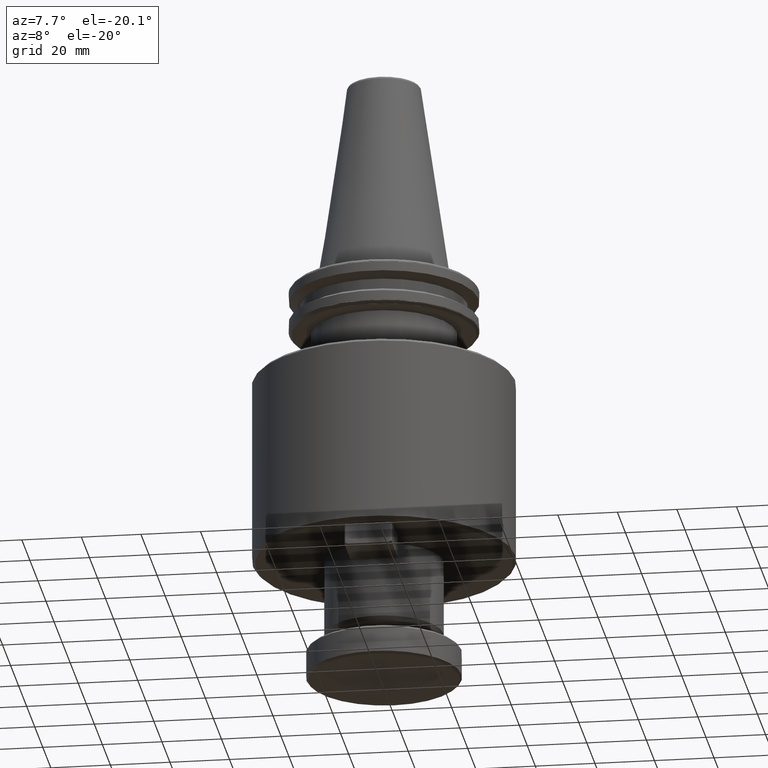
[diagram: clean part render]
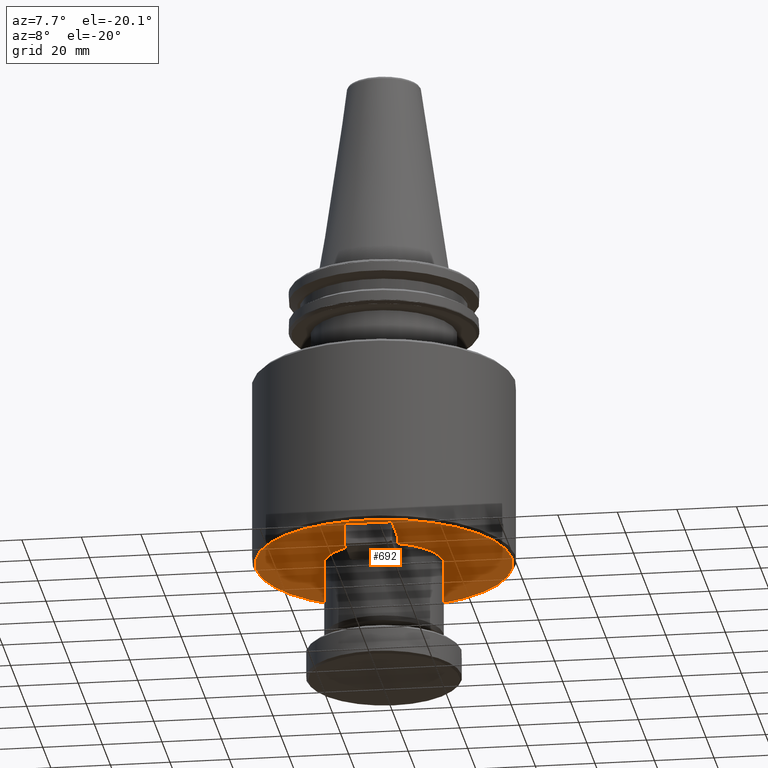
[diagram: same view with one face highlighted and labeled with its STEP entity id]
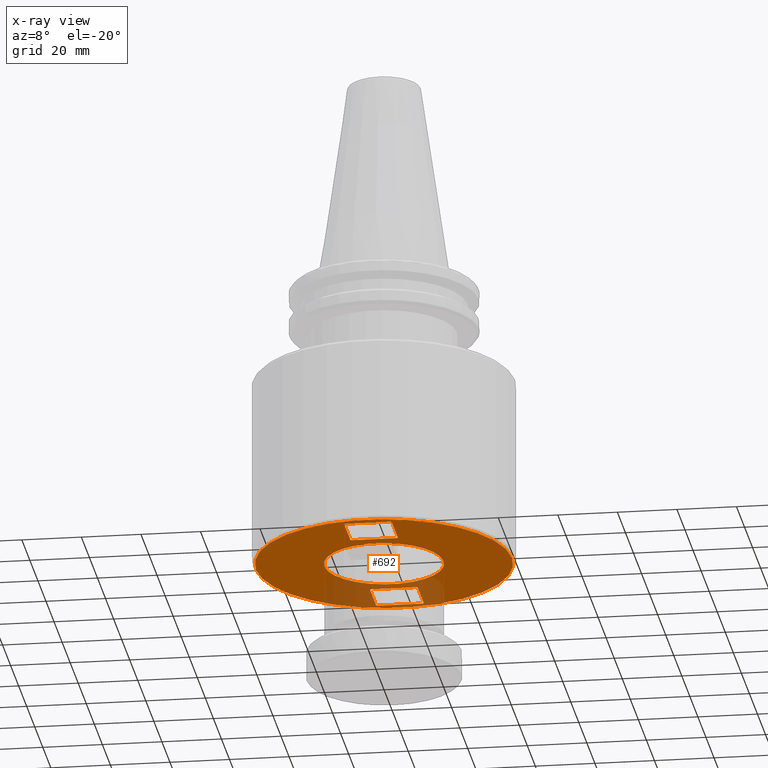
[diagram: x-ray of the same camera — body ghosted, the highlighted face saturated]
A machine part, auxiliary view. The second image highlights one B-rep face of the part: STEP entity #692.
The next image is the same camera in x-ray: the body ghosted, the highlighted face saturated — about 17% of this face is hidden behind the body in this view.
In plain terms, the highlighted planar face has unit normal (0, 0, 1).
Its self-contained STEP definition (entity closure, byte-faithful):
#16 = CARTESIAN_POINT ( 'NONE',  ( -8.000000000000028400, -39.60000000000004400, -100.0000000000000000 ) ) ;
#38 = CARTESIAN_POINT ( 'NONE',  ( 8.000000000000005300, -24.40000000000001300, -100.0000000000000000 ) ) ;
#44 = LINE ( 'NONE', #3498, #367 ) ;
#63 = CARTESIAN_POINT ( 'NONE',  ( -7.600000000000028100, 40.00000000000002800, -100.0000000000000000 ) ) ;
#74 = EDGE_CURVE ( 'NONE', #2169, #2018, #3977, .T. ) ;
#94 = VECTOR ( 'NONE', #189, 1000.000000000000000 ) ;
#136 = CARTESIAN_POINT ( 'NONE',  ( 43.00000000000000000, 0.0000000000000000000, -100.0000000000000000 ) ) ;
#140 = CARTESIAN_POINT ( 'NONE',  ( 0.0000000000000000000, 24.00000000000002800, -100.0000000000000000 ) ) ;
#149 = LINE ( 'NONE', #2171, #1174 ) ;
#177 = EDGE_LOOP ( 'NONE', ( #3212, #707 ) ) ;
#189 = DIRECTION ( 'NONE',  ( -1.000000000000000000, -0.0000000000000000000, 0.0000000000000000000 ) ) ;
#319 = AXIS2_PLACEMENT_3D ( 'NONE', #3866, #2589, #4181 ) ;
#329 = CARTESIAN_POINT ( 'NONE',  ( -43.00000000000000000, 5.327213576290986800E-015, -100.0000000000000000 ) ) ;
#367 = VECTOR ( 'NONE', #2789, 1000.000000000000000 ) ;
#370 = CARTESIAN_POINT ( 'NONE',  ( -8.000000000000007100, 24.40000000000001300, -100.0000000000000000 ) ) ;
#463 = EDGE_CURVE ( 'NONE', #2000, #3263, #44, .T. ) ;
#471 = LINE ( 'NONE', #3968, #522 ) ;
#481 = ORIENTED_EDGE ( 'NONE', *, *, #74, .F. ) ;
#494 = DIRECTION ( 'NONE',  ( 1.000000000000000000, 0.0000000000000000000, 0.0000000000000000000 ) ) ;
#503 = CARTESIAN_POINT ( 'NONE',  ( 7.600000000000048500, 24.00000000000002800, -100.0000000000000000 ) ) ;
#516 = DIRECTION ( 'NONE',  ( 0.0000000000000000000, -0.0000000000000000000, 1.000000000000000000 ) ) ;
#522 = VECTOR ( 'NONE', #3696, 1000.000000000000000 ) ;
#539 = CARTESIAN_POINT ( 'NONE',  ( 0.0000000000000000000, 0.0000000000000000000, -100.0000000000000000 ) ) ;
#544 = ORIENTED_EDGE ( 'NONE', *, *, #463, .F. ) ;
#609 = VERTEX_POINT ( 'NONE', #3839 ) ;
#692 = ADVANCED_FACE ( 'NONE', ( #1854, #1520, #1967, #1957 ), #4282, .F. ) ;
#707 = ORIENTED_EDGE ( 'NONE', *, *, #1762, .F. ) ;
#765 = VERTEX_POINT ( 'NONE', #4037 ) ;
#806 = CARTESIAN_POINT ( 'NONE',  ( 8.000000000000028400, 39.60000000000004400, -100.0000000000000000 ) ) ;
#836 = CARTESIAN_POINT ( 'NONE',  ( 7.600000000000048500, 24.00000000000002800, -100.0000000000000000 ) ) ;
#846 = DIRECTION ( 'NONE',  ( 1.000000000000000000, 0.0000000000000000000, 0.0000000000000000000 ) ) ;
#850 = DIRECTION ( 'NONE',  ( -0.0000000000000000000, -0.0000000000000000000, -1.000000000000000000 ) ) ;
#851 = CARTESIAN_POINT ( 'NONE',  ( 0.0000000000000000000, 0.0000000000000000000, -100.0000000000000000 ) ) ;
#865 = DIRECTION ( 'NONE',  ( 1.000000000000000000, 0.0000000000000000000, -0.0000000000000000000 ) ) ;
#877 = CARTESIAN_POINT ( 'NONE',  ( -7.600000000000048500, -24.00000000000002800, -100.0000000000000000 ) ) ;
#883 = VERTEX_POINT ( 'NONE', #3817 ) ;
#896 = DIRECTION ( 'NONE',  ( 0.7071067811865222600, 0.7071067811865727700, -0.0000000000000000000 ) ) ;
#942 = ORIENTED_EDGE ( 'NONE', *, *, #3050, .T. ) ;
#953 = CARTESIAN_POINT ( 'NONE',  ( 8.000000000000005300, 43.00000000000000000, -100.0000000000000000 ) ) ;
#968 = DIRECTION ( 'NONE',  ( 0.0000000000000000000, -1.000000000000000000, -0.0000000000000000000 ) ) ;
#1021 = VECTOR ( 'NONE', #2764, 1000.000000000000100 ) ;
#1033 = LINE ( 'NONE', #3188, #1473 ) ;
#1101 = CARTESIAN_POINT ( 'NONE',  ( 7.999999999999986700, -39.60000000000003700, -100.0000000000000000 ) ) ;
#1115 = AXIS2_PLACEMENT_3D ( 'NONE', #851, #850, #846 ) ;
#1174 = VECTOR ( 'NONE', #2177, 1000.000000000000000 ) ;
#1189 = VERTEX_POINT ( 'NONE', #2344 ) ;
#1193 = EDGE_CURVE ( 'NONE', #609, #1316, #3955, .T. ) ;
#1201 = ORIENTED_EDGE ( 'NONE', *, *, #2316, .F. ) ;
#1204 = ORIENTED_EDGE ( 'NONE', *, *, #2164, .F. ) ;
#1225 = DIRECTION ( 'NONE',  ( -0.7071067811865736600, 0.7071067811865214800, -0.0000000000000000000 ) ) ;
#1280 = LINE ( 'NONE', #38, #1021 ) ;
#1316 = VERTEX_POINT ( 'NONE', #2698 ) ;
#1324 = CARTESIAN_POINT ( 'NONE',  ( 0.0000000000000000000, -40.00000000000002800, -100.0000000000000000 ) ) ;
#1372 = CARTESIAN_POINT ( 'NONE',  ( -7.599999999999993400, 24.00000000000002800, -100.0000000000000000 ) ) ;
#1393 = EDGE_CURVE ( 'NONE', #2203, #1529, #471, .T. ) ;
#1431 = EDGE_CURVE ( 'NONE', #4171, #1529, #149, .T. ) ;
#1473 = VECTOR ( 'NONE', #865, 1000.000000000000000 ) ;
#1507 = DIRECTION ( 'NONE',  ( 0.0000000000000000000, -1.000000000000000000, -0.0000000000000000000 ) ) ;
#1509 = CIRCLE ( 'NONE', #3437, 43.00000000000000000 ) ;
#1520 = FACE_OUTER_BOUND ( 'NONE', #4034, .T. ) ;
#1529 = VERTEX_POINT ( 'NONE', #1666 ) ;
#1589 = ORIENTED_EDGE ( 'NONE', *, *, #1786, .T. ) ;
#1598 = DIRECTION ( 'NONE',  ( -0.7071067811865727700, 0.7071067811865222600, -0.0000000000000000000 ) ) ;
#1625 = VECTOR ( 'NONE', #968, 1000.000000000000000 ) ;
#1643 = VERTEX_POINT ( 'NONE', #1101 ) ;
#1666 = CARTESIAN_POINT ( 'NONE',  ( -8.000000000000008900, -24.40000000000002000, -100.0000000000000000 ) ) ;
#1691 = LINE ( 'NONE', #806, #3611 ) ;
#1720 = LINE ( 'NONE', #140, #94 ) ;
#1722 = EDGE_CURVE ( 'NONE', #1189, #1643, #3097, .T. ) ;
#1723 = VECTOR ( 'NONE', #1507, 1000.000000000000000 ) ;
#1762 = EDGE_CURVE ( 'NONE', #883, #3621, #2868, .T. ) ;
#1770 = LINE ( 'NONE', #3403, #1723 ) ;
#1781 = LINE ( 'NONE', #1324, #3609 ) ;
#1786 = EDGE_CURVE ( 'NONE', #1923, #3965, #2954, .T. ) ;
#1810 = ORIENTED_EDGE ( 'NONE', *, *, #2333, .F. ) ;
#1854 = FACE_BOUND ( 'NONE', #177, .T. ) ;
#1861 = DIRECTION ( 'NONE',  ( 0.7071067811865727700, -0.7071067811865222600, -0.0000000000000000000 ) ) ;
#1917 = ORIENTED_EDGE ( 'NONE', *, *, #4179, .F. ) ;
#1923 = VERTEX_POINT ( 'NONE', #503 ) ;
#1938 = CARTESIAN_POINT ( 'NONE',  ( -8.000000000000028400, -39.60000000000004400, -100.0000000000000000 ) ) ;
#1957 = FACE_BOUND ( 'NONE', #3828, .T. ) ;
#1960 = CARTESIAN_POINT ( 'NONE',  ( 7.600000000000027200, -40.00000000000002800, -100.0000000000000000 ) ) ;
#1967 = FACE_BOUND ( 'NONE', #3627, .T. ) ;
#2000 = VERTEX_POINT ( 'NONE', #370 ) ;
#2012 = ORIENTED_EDGE ( 'NONE', *, *, #2852, .F. ) ;
#2018 = VERTEX_POINT ( 'NONE', #329 ) ;
#2045 = VECTOR ( 'NONE', #896, 1000.000000000000000 ) ;
#2072 = ORIENTED_EDGE ( 'NONE', *, *, #1722, .F. ) ;
#2100 = VECTOR ( 'NONE', #2446, 1000.000000000000100 ) ;
#2164 = EDGE_CURVE ( 'NONE', #1923, #2819, #1720, .T. ) ;
#2169 = VERTEX_POINT ( 'NONE', #136 ) ;
#2171 = CARTESIAN_POINT ( 'NONE',  ( -7.600000000000048500, -24.00000000000002800, -100.0000000000000000 ) ) ;
#2177 = DIRECTION ( 'NONE',  ( -0.7071067811865222600, -0.7071067811865727700, -0.0000000000000000000 ) ) ;
#2203 = VERTEX_POINT ( 'NONE', #16 ) ;
#2215 = ORIENTED_EDGE ( 'NONE', *, *, #3309, .T. ) ;
#2284 = LINE ( 'NONE', #63, #2100 ) ;
#2301 = VERTEX_POINT ( 'NONE', #1960 ) ;
#2316 = EDGE_CURVE ( 'NONE', #765, #1189, #1280, .T. ) ;
#2317 = ORIENTED_EDGE ( 'NONE', *, *, #2640, .F. ) ;
#2318 = ORIENTED_EDGE ( 'NONE', *, *, #1393, .F. ) ;
#2331 = DIRECTION ( 'NONE',  ( 1.000000000000000000, 0.0000000000000000000, -0.0000000000000000000 ) ) ;
#2333 = EDGE_CURVE ( 'NONE', #2018, #2169, #1509, .T. ) ;
#2344 = CARTESIAN_POINT ( 'NONE',  ( 8.000000000000007100, -24.40000000000001300, -100.0000000000000000 ) ) ;
#2354 = CARTESIAN_POINT ( 'NONE',  ( 0.0000000000000000000, 40.00000000000002800, -100.0000000000000000 ) ) ;
#2361 = EDGE_CURVE ( 'NONE', #3916, #3965, #1770, .T. ) ;
#2446 = DIRECTION ( 'NONE',  ( -0.7071067811865214800, -0.7071067811865736600, -0.0000000000000000000 ) ) ;
#2459 = CARTESIAN_POINT ( 'NONE',  ( 20.00000000000000000, 0.0000000000000000000, -100.0000000000000000 ) ) ;
#2569 = ORIENTED_EDGE ( 'NONE', *, *, #2361, .F. ) ;
#2589 = DIRECTION ( 'NONE',  ( -0.0000000000000000000, -0.0000000000000000000, -1.000000000000000000 ) ) ;
#2637 = EDGE_CURVE ( 'NONE', #3621, #883, #2906, .T. ) ;
#2640 = EDGE_CURVE ( 'NONE', #2762, #2203, #3291, .T. ) ;
#2664 = CARTESIAN_POINT ( 'NONE',  ( 7.600000000000028100, -40.00000000000002800, -100.0000000000000000 ) ) ;
#2670 = CARTESIAN_POINT ( 'NONE',  ( -7.600000000000014700, -40.00000000000002800, -100.0000000000000000 ) ) ;
#2698 = CARTESIAN_POINT ( 'NONE',  ( 7.600000000000014700, 40.00000000000002800, -100.0000000000000000 ) ) ;
#2762 = VERTEX_POINT ( 'NONE', #2670 ) ;
#2764 = DIRECTION ( 'NONE',  ( 0.7071067811865736600, -0.7071067811865214800, -0.0000000000000000000 ) ) ;
#2789 = DIRECTION ( 'NONE',  ( -0.0000000000000000000, 1.000000000000000000, 0.0000000000000000000 ) ) ;
#2819 = VERTEX_POINT ( 'NONE', #1372 ) ;
#2852 = EDGE_CURVE ( 'NONE', #2301, #2762, #1781, .T. ) ;
#2858 = VECTOR ( 'NONE', #2331, 1000.000000000000000 ) ;
#2868 = CIRCLE ( 'NONE', #1115, 20.00000000000000000 ) ;
#2881 = DIRECTION ( 'NONE',  ( 1.000000000000000000, 0.0000000000000000000, 0.0000000000000000000 ) ) ;
#2906 = CIRCLE ( 'NONE', #319, 20.00000000000000000 ) ;
#2940 = AXIS2_PLACEMENT_3D ( 'NONE', #539, #516, #494 ) ;
#2954 = LINE ( 'NONE', #836, #2045 ) ;
#2960 = ORIENTED_EDGE ( 'NONE', *, *, #1193, .F. ) ;
#2979 = ORIENTED_EDGE ( 'NONE', *, *, #3806, .F. ) ;
#3050 = EDGE_CURVE ( 'NONE', #609, #3263, #2284, .T. ) ;
#3097 = LINE ( 'NONE', #953, #1625 ) ;
#3098 = DIRECTION ( 'NONE',  ( 1.000000000000000000, 0.0000000000000000000, -0.0000000000000000000 ) ) ;
#3101 = DIRECTION ( 'NONE',  ( 0.0000000000000000000, 0.0000000000000000000, 1.000000000000000000 ) ) ;
#3170 = EDGE_CURVE ( 'NONE', #1316, #3916, #1691, .T. ) ;
#3188 = CARTESIAN_POINT ( 'NONE',  ( 0.0000000000000000000, -24.00000000000002800, -100.0000000000000000 ) ) ;
#3208 = CARTESIAN_POINT ( 'NONE',  ( -8.000000000000005300, 24.40000000000001300, -100.0000000000000000 ) ) ;
#3212 = ORIENTED_EDGE ( 'NONE', *, *, #2637, .F. ) ;
#3239 = VECTOR ( 'NONE', #1598, 1000.000000000000000 ) ;
#3263 = VERTEX_POINT ( 'NONE', #3932 ) ;
#3291 = LINE ( 'NONE', #1938, #3239 ) ;
#3309 = EDGE_CURVE ( 'NONE', #2301, #1643, #3961, .T. ) ;
#3403 = CARTESIAN_POINT ( 'NONE',  ( 8.000000000000028400, 43.00000000000000000, -100.0000000000000000 ) ) ;
#3437 = AXIS2_PLACEMENT_3D ( 'NONE', #3531, #3476, #2881 ) ;
#3448 = VECTOR ( 'NONE', #1225, 1000.000000000000100 ) ;
#3476 = DIRECTION ( 'NONE',  ( 0.0000000000000000000, -0.0000000000000000000, 1.000000000000000000 ) ) ;
#3498 = CARTESIAN_POINT ( 'NONE',  ( -8.000000000000005300, 43.00000000000000000, -100.0000000000000000 ) ) ;
#3531 = CARTESIAN_POINT ( 'NONE',  ( 0.0000000000000000000, 0.0000000000000000000, -100.0000000000000000 ) ) ;
#3563 = CARTESIAN_POINT ( 'NONE',  ( 8.000000000000028400, 39.60000000000004400, -100.0000000000000000 ) ) ;
#3609 = VECTOR ( 'NONE', #3631, 1000.000000000000000 ) ;
#3611 = VECTOR ( 'NONE', #1861, 1000.000000000000000 ) ;
#3621 = VERTEX_POINT ( 'NONE', #2459 ) ;
#3627 = EDGE_LOOP ( 'NONE', ( #4228, #2960, #942, #544, #1917, #1204, #1589, #2569 ) ) ;
#3630 = ORIENTED_EDGE ( 'NONE', *, *, #1431, .T. ) ;
#3631 = DIRECTION ( 'NONE',  ( -1.000000000000000000, -0.0000000000000000000, 0.0000000000000000000 ) ) ;
#3646 = CARTESIAN_POINT ( 'NONE',  ( 8.000000000000010700, 24.40000000000002000, -100.0000000000000000 ) ) ;
#3696 = DIRECTION ( 'NONE',  ( -0.0000000000000000000, 1.000000000000000000, 0.0000000000000000000 ) ) ;
#3706 = CARTESIAN_POINT ( 'NONE',  ( 0.0000000000000000000, 43.00000000000000000, -100.0000000000000000 ) ) ;
#3806 = EDGE_CURVE ( 'NONE', #4171, #765, #1033, .T. ) ;
#3816 = VECTOR ( 'NONE', #4273, 1000.000000000000100 ) ;
#3817 = CARTESIAN_POINT ( 'NONE',  ( -20.00000000000000000, 2.449293598294706500E-015, -100.0000000000000000 ) ) ;
#3828 = EDGE_LOOP ( 'NONE', ( #2317, #2012, #2215, #2072, #1201, #2979, #3630, #2318 ) ) ;
#3839 = CARTESIAN_POINT ( 'NONE',  ( -7.600000000000027200, 40.00000000000002800, -100.0000000000000000 ) ) ;
#3866 = CARTESIAN_POINT ( 'NONE',  ( 0.0000000000000000000, 0.0000000000000000000, -100.0000000000000000 ) ) ;
#3916 = VERTEX_POINT ( 'NONE', #3563 ) ;
#3932 = CARTESIAN_POINT ( 'NONE',  ( -7.999999999999986700, 39.60000000000003700, -100.0000000000000000 ) ) ;
#3955 = LINE ( 'NONE', #2354, #2858 ) ;
#3961 = LINE ( 'NONE', #2664, #3816 ) ;
#3965 = VERTEX_POINT ( 'NONE', #3646 ) ;
#3968 = CARTESIAN_POINT ( 'NONE',  ( -8.000000000000028400, 43.00000000000000000, -100.0000000000000000 ) ) ;
#3977 = CIRCLE ( 'NONE', #2940, 43.00000000000000000 ) ;
#4034 = EDGE_LOOP ( 'NONE', ( #481, #1810 ) ) ;
#4037 = CARTESIAN_POINT ( 'NONE',  ( 7.599999999999993400, -24.00000000000002800, -100.0000000000000000 ) ) ;
#4127 = AXIS2_PLACEMENT_3D ( 'NONE', #3706, #3101, #3098 ) ;
#4157 = LINE ( 'NONE', #3208, #3448 ) ;
#4171 = VERTEX_POINT ( 'NONE', #877 ) ;
#4179 = EDGE_CURVE ( 'NONE', #2819, #2000, #4157, .T. ) ;
#4181 = DIRECTION ( 'NONE',  ( 1.000000000000000000, 0.0000000000000000000, 0.0000000000000000000 ) ) ;
#4228 = ORIENTED_EDGE ( 'NONE', *, *, #3170, .F. ) ;
#4273 = DIRECTION ( 'NONE',  ( 0.7071067811865214800, 0.7071067811865736600, -0.0000000000000000000 ) ) ;
#4282 = PLANE ( 'NONE',  #4127 ) ;